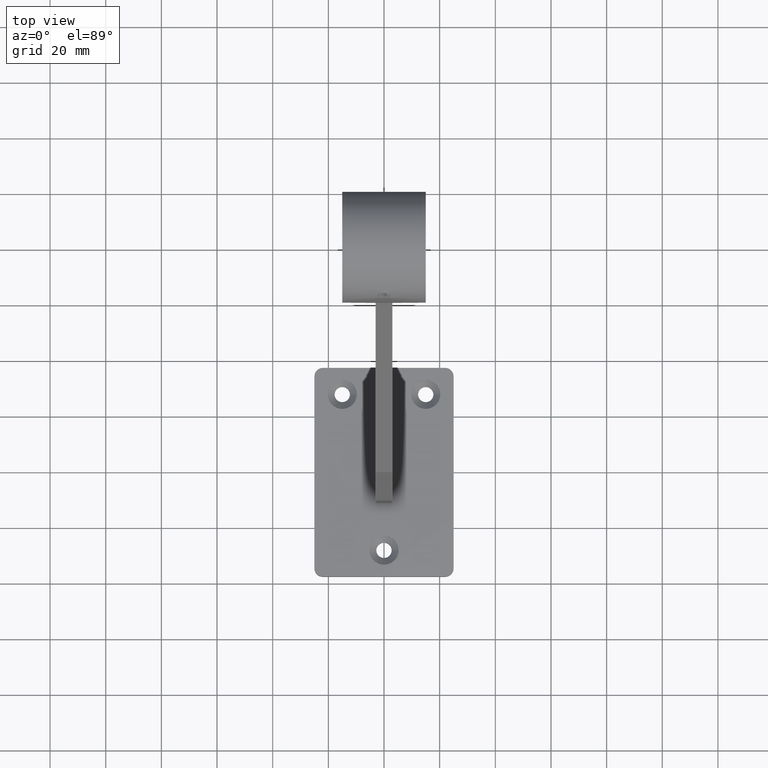
[diagram: clean part render]
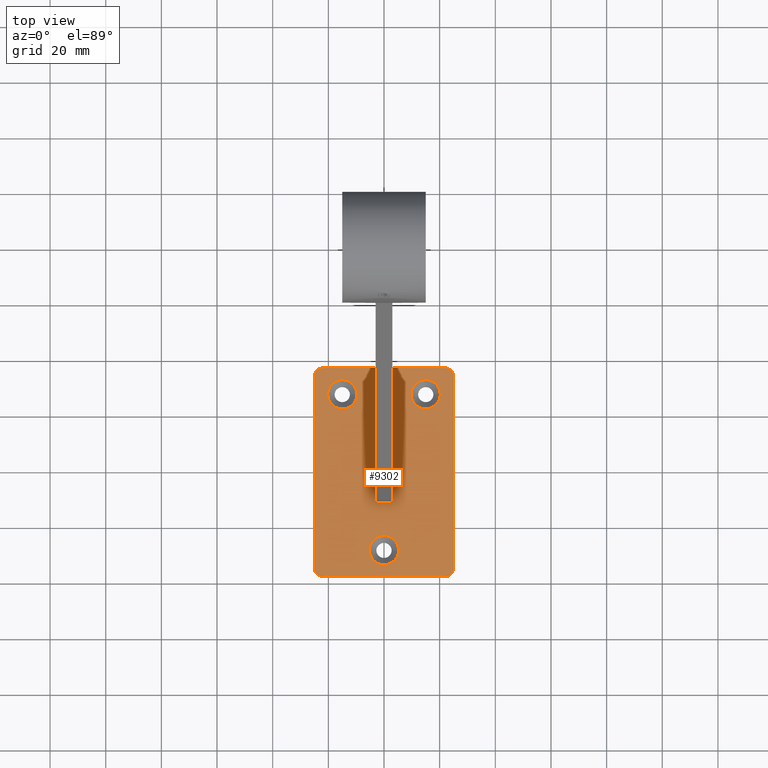
[diagram: same view with one face highlighted and labeled with its STEP entity id]
A machine part, top view. The second image highlights one B-rep face of the part: STEP entity #9302.
In plain terms, the highlighted planar face has unit normal (0, 0, 1).
Its self-contained STEP definition (entity closure, byte-faithful):
#237 = LINE ( 'NONE', #835, #11061 ) ;
#363 = EDGE_CURVE ( 'NONE', #11029, #8313, #6542, .T. ) ;
#413 = VECTOR ( 'NONE', #9717, 1000.000000000000000 ) ;
#473 = DIRECTION ( 'NONE',  ( 1.000000000000000000, 0.000000000000000000, 0.000000000000000000 ) ) ;
#516 = CIRCLE ( 'NONE', #4432, 5.249999999999997335 ) ;
#537 = DIRECTION ( 'NONE',  ( -0.000000000000000000, -0.000000000000000000, 1.000000000000000000 ) ) ;
#546 = VECTOR ( 'NONE', #9906, 1000.000000000000000 ) ;
#708 = CARTESIAN_POINT ( 'NONE',  ( 0.000000000000000000, -27.99999999999999645, 8.000000000000001776 ) ) ;
#804 = VERTEX_POINT ( 'NONE', #11570 ) ;
#825 = CARTESIAN_POINT ( 'NONE',  ( -25.00000000000000355, 37.50000000000000000, 8.000000000000000000 ) ) ;
#835 = CARTESIAN_POINT ( 'NONE',  ( 25.00000000000000000, 37.50000000000000000, 8.000000000000000000 ) ) ;
#1028 = DIRECTION ( 'NONE',  ( -0.000000000000000000, 0.000000000000000000, 1.000000000000000000 ) ) ;
#1068 = LINE ( 'NONE', #825, #5952 ) ;
#1093 = CARTESIAN_POINT ( 'NONE',  ( 22.00000000000000711, -34.49999999999999289, 8.000000000000000000 ) ) ;
#1117 = EDGE_CURVE ( 'NONE', #1280, #5791, #1068, .T. ) ;
#1187 = LINE ( 'NONE', #5854, #413 ) ;
#1280 = VERTEX_POINT ( 'NONE', #8799 ) ;
#1367 = CARTESIAN_POINT ( 'NONE',  ( 22.00000000000000355, 34.49999999999999289, 8.000000000000000000 ) ) ;
#1384 = DIRECTION ( 'NONE',  ( -0.000000000000000000, 0.000000000000000000, 1.000000000000000000 ) ) ;
#1414 = ORIENTED_EDGE ( 'NONE', *, *, #1117, .T. ) ;
#1521 = ORIENTED_EDGE ( 'NONE', *, *, #8321, .T. ) ;
#1580 = CIRCLE ( 'NONE', #2932, 5.249999999999997335 ) ;
#1592 = DIRECTION ( 'NONE',  ( 1.000000000000000000, 0.000000000000000000, 0.000000000000000000 ) ) ;
#1666 = CARTESIAN_POINT ( 'NONE',  ( 0.000000000000000000, 0.000000000000000000, 8.000000000000000000 ) ) ;
#1709 = DIRECTION ( 'NONE',  ( -1.000000000000000000, -0.000000000000000000, -0.000000000000000000 ) ) ;
#2033 = FACE_OUTER_BOUND ( 'NONE', #8465, .T. ) ;
#2245 = CARTESIAN_POINT ( 'NONE',  ( 22.00000000000000355, -37.50000000000000000, 8.000000000000000000 ) ) ;
#2249 = EDGE_CURVE ( 'NONE', #2723, #9585, #6525, .T. ) ;
#2376 = ORIENTED_EDGE ( 'NONE', *, *, #7702, .T. ) ;
#2451 = CARTESIAN_POINT ( 'NONE',  ( 15.00000000000000355, 27.99999999999999645, 8.000000000000001776 ) ) ;
#2639 = CIRCLE ( 'NONE', #8467, 2.999999999999999112 ) ;
#2659 = VERTEX_POINT ( 'NONE', #8069 ) ;
#2662 = CARTESIAN_POINT ( 'NONE',  ( -22.00000000000000711, 37.50000000000000000, 8.000000000000000000 ) ) ;
#2722 = ORIENTED_EDGE ( 'NONE', *, *, #5609, .F. ) ;
#2723 = VERTEX_POINT ( 'NONE', #2662 ) ;
#2932 = AXIS2_PLACEMENT_3D ( 'NONE', #5850, #6711, #5896 ) ;
#2965 = VERTEX_POINT ( 'NONE', #7558 ) ;
#2973 = DIRECTION ( 'NONE',  ( 1.000000000000000000, 0.000000000000000000, 0.000000000000000000 ) ) ;
#3155 = AXIS2_PLACEMENT_3D ( 'NONE', #1367, #7087, #473 ) ;
#3317 = VERTEX_POINT ( 'NONE', #7889 ) ;
#3358 = LINE ( 'NONE', #10769, #546 ) ;
#3383 = ORIENTED_EDGE ( 'NONE', *, *, #3440, .T. ) ;
#3440 = EDGE_CURVE ( 'NONE', #2659, #11029, #3511, .T. ) ;
#3511 = CIRCLE ( 'NONE', #4013, 2.999999999999999112 ) ;
#3534 = EDGE_CURVE ( 'NONE', #2965, #1280, #3798, .T. ) ;
#3550 = DIRECTION ( 'NONE',  ( -0.000000000000000000, 0.000000000000000000, 1.000000000000000000 ) ) ;
#3630 = DIRECTION ( 'NONE',  ( -0.000000000000000000, 0.000000000000000000, 1.000000000000000000 ) ) ;
#3660 = EDGE_CURVE ( 'NONE', #9206, #2723, #3358, .T. ) ;
#3766 = LINE ( 'NONE', #4885, #7769 ) ;
#3798 = CIRCLE ( 'NONE', #3155, 2.999999999999999112 ) ;
#3831 = CARTESIAN_POINT ( 'NONE',  ( -22.00000000000000000, -34.49999999999999289, 8.000000000000000000 ) ) ;
#3973 = DIRECTION ( 'NONE',  ( -1.000000000000000000, -0.000000000000000000, -0.000000000000000000 ) ) ;
#4013 = AXIS2_PLACEMENT_3D ( 'NONE', #3831, #1028, #2973 ) ;
#4432 = AXIS2_PLACEMENT_3D ( 'NONE', #708, #537, #8228 ) ;
#4567 = CARTESIAN_POINT ( 'NONE',  ( 3.000000000000000000, -11.00000000000000355, 8.000000000000000000 ) ) ;
#4591 = DIRECTION ( 'NONE',  ( 1.000000000000000000, 0.000000000000000000, 0.000000000000000000 ) ) ;
#4696 = VERTEX_POINT ( 'NONE', #9996 ) ;
#4885 = CARTESIAN_POINT ( 'NONE',  ( 3.000000000000000000, -11.00000000000000355, 8.000000000000000000 ) ) ;
#4909 = VECTOR ( 'NONE', #4591, 1000.000000000000000 ) ;
#5060 = AXIS2_PLACEMENT_3D ( 'NONE', #1666, #3550, #1592 ) ;
#5116 = FACE_BOUND ( 'NONE', #9396, .T. ) ;
#5154 = EDGE_CURVE ( 'NONE', #4696, #2965, #237, .T. ) ;
#5609 = EDGE_CURVE ( 'NONE', #9206, #11802, #1187, .T. ) ;
#5729 = EDGE_CURVE ( 'NONE', #9585, #2659, #11366, .T. ) ;
#5791 = VERTEX_POINT ( 'NONE', #6185 ) ;
#5850 = CARTESIAN_POINT ( 'NONE',  ( -15.00000000000000533, 27.99999999999999645, 8.000000000000001776 ) ) ;
#5854 = CARTESIAN_POINT ( 'NONE',  ( -3.000000000000000000, 0.000000000000000000, 8.000000000000000000 ) ) ;
#5896 = DIRECTION ( 'NONE',  ( 1.000000000000000000, 0.000000000000000000, 0.000000000000000000 ) ) ;
#5952 = VECTOR ( 'NONE', #1709, 1000.000000000000000 ) ;
#5981 = ORIENTED_EDGE ( 'NONE', *, *, #363, .T. ) ;
#6066 = DIRECTION ( 'NONE',  ( 9.251858538542971581E-17, -1.000000000000000000, 0.000000000000000000 ) ) ;
#6185 = CARTESIAN_POINT ( 'NONE',  ( 3.000000000000000000, 37.50000000000000000, 7.999999999999998224 ) ) ;
#6525 = CIRCLE ( 'NONE', #7994, 2.999999999999999112 ) ;
#6538 = ORIENTED_EDGE ( 'NONE', *, *, #10664, .F. ) ;
#6542 = LINE ( 'NONE', #10126, #4909 ) ;
#6603 = EDGE_CURVE ( 'NONE', #3317, #3317, #9770, .T. ) ;
#6711 = DIRECTION ( 'NONE',  ( -0.000000000000000000, -0.000000000000000000, 1.000000000000000000 ) ) ;
#6716 = VERTEX_POINT ( 'NONE', #11529 ) ;
#6772 = ORIENTED_EDGE ( 'NONE', *, *, #5154, .T. ) ;
#7019 = DIRECTION ( 'NONE',  ( 1.000000000000000000, 0.000000000000000000, 0.000000000000000000 ) ) ;
#7056 = CARTESIAN_POINT ( 'NONE',  ( -22.00000000000000000, -37.50000000000000000, 8.000000000000000000 ) ) ;
#7087 = DIRECTION ( 'NONE',  ( -0.000000000000000000, 0.000000000000000000, 1.000000000000000000 ) ) ;
#7392 = DIRECTION ( 'NONE',  ( -4.625929269271485791E-17, 1.000000000000000000, -0.000000000000000000 ) ) ;
#7393 = ORIENTED_EDGE ( 'NONE', *, *, #6603, .F. ) ;
#7441 = ORIENTED_EDGE ( 'NONE', *, *, #11964, .T. ) ;
#7558 = CARTESIAN_POINT ( 'NONE',  ( 25.00000000000000000, 34.49999999999999289, 8.000000000000000000 ) ) ;
#7702 = EDGE_CURVE ( 'NONE', #8313, #4696, #2639, .T. ) ;
#7769 = VECTOR ( 'NONE', #3973, 1000.000000000000000 ) ;
#7779 = FACE_BOUND ( 'NONE', #9373, .T. ) ;
#7889 = CARTESIAN_POINT ( 'NONE',  ( 20.25000000000000000, 27.99999999999999645, 8.000000000000001776 ) ) ;
#7994 = AXIS2_PLACEMENT_3D ( 'NONE', #9341, #3630, #11236 ) ;
#8067 = ORIENTED_EDGE ( 'NONE', *, *, #2249, .T. ) ;
#8069 = CARTESIAN_POINT ( 'NONE',  ( -24.99999999999999645, -34.49999999999999289, 8.000000000000000000 ) ) ;
#8228 = DIRECTION ( 'NONE',  ( 1.000000000000000000, 0.000000000000000000, 0.000000000000000000 ) ) ;
#8253 = EDGE_LOOP ( 'NONE', ( #6538 ) ) ;
#8313 = VERTEX_POINT ( 'NONE', #2245 ) ;
#8321 = EDGE_CURVE ( 'NONE', #5791, #9476, #11489, .T. ) ;
#8465 = EDGE_LOOP ( 'NONE', ( #8808, #8067, #9868, #3383, #5981, #2376, #6772, #10977, #1414, #1521, #7441, #2722 ) ) ;
#8467 = AXIS2_PLACEMENT_3D ( 'NONE', #1093, #1384, #7019 ) ;
#8674 = FACE_BOUND ( 'NONE', #8253, .T. ) ;
#8799 = CARTESIAN_POINT ( 'NONE',  ( 22.00000000000000355, 37.50000000000000000, 8.000000000000000000 ) ) ;
#8808 = ORIENTED_EDGE ( 'NONE', *, *, #3660, .T. ) ;
#8835 = CARTESIAN_POINT ( 'NONE',  ( -25.00000000000000355, 37.50000000000000000, 8.000000000000000000 ) ) ;
#8837 = DIRECTION ( 'NONE',  ( 0.000000000000000000, -1.000000000000000000, 0.000000000000000000 ) ) ;
#9206 = VERTEX_POINT ( 'NONE', #11695 ) ;
#9221 = PLANE ( 'NONE',  #5060 ) ;
#9280 = VECTOR ( 'NONE', #8837, 1000.000000000000000 ) ;
#9302 = ADVANCED_FACE ( 'NONE', ( #5116, #7779, #8674, #2033 ), #9221, .T. ) ;
#9341 = CARTESIAN_POINT ( 'NONE',  ( -22.00000000000000711, 34.49999999999999289, 8.000000000000000000 ) ) ;
#9373 = EDGE_LOOP ( 'NONE', ( #7393 ) ) ;
#9396 = EDGE_LOOP ( 'NONE', ( #12258 ) ) ;
#9476 = VERTEX_POINT ( 'NONE', #4567 ) ;
#9553 = CARTESIAN_POINT ( 'NONE',  ( -25.00000000000000355, 34.49999999999999289, 8.000000000000000000 ) ) ;
#9585 = VERTEX_POINT ( 'NONE', #9553 ) ;
#9717 = DIRECTION ( 'NONE',  ( 0.000000000000000000, -1.000000000000000000, 0.000000000000000000 ) ) ;
#9770 = CIRCLE ( 'NONE', #11140, 5.249999999999997335 ) ;
#9844 = CARTESIAN_POINT ( 'NONE',  ( 3.000000000000000000, 0.000000000000000000, 8.000000000000000000 ) ) ;
#9868 = ORIENTED_EDGE ( 'NONE', *, *, #5729, .T. ) ;
#9906 = DIRECTION ( 'NONE',  ( -1.000000000000000000, -0.000000000000000000, -0.000000000000000000 ) ) ;
#9918 = EDGE_CURVE ( 'NONE', #6716, #6716, #1580, .T. ) ;
#9996 = CARTESIAN_POINT ( 'NONE',  ( 25.00000000000000355, -34.49999999999999289, 8.000000000000000000 ) ) ;
#10126 = CARTESIAN_POINT ( 'NONE',  ( -24.99999999999999645, -37.50000000000000000, 8.000000000000000000 ) ) ;
#10516 = CARTESIAN_POINT ( 'NONE',  ( -3.000000000000000000, -11.00000000000000355, 8.000000000000000000 ) ) ;
#10664 = EDGE_CURVE ( 'NONE', #804, #804, #516, .T. ) ;
#10769 = CARTESIAN_POINT ( 'NONE',  ( -25.00000000000000355, 37.50000000000000000, 8.000000000000000000 ) ) ;
#10948 = DIRECTION ( 'NONE',  ( -0.000000000000000000, -0.000000000000000000, 1.000000000000000000 ) ) ;
#10977 = ORIENTED_EDGE ( 'NONE', *, *, #3534, .T. ) ;
#11029 = VERTEX_POINT ( 'NONE', #7056 ) ;
#11061 = VECTOR ( 'NONE', #7392, 1000.000000000000000 ) ;
#11140 = AXIS2_PLACEMENT_3D ( 'NONE', #2451, #10948, #11896 ) ;
#11236 = DIRECTION ( 'NONE',  ( 1.000000000000000000, 0.000000000000000000, 0.000000000000000000 ) ) ;
#11353 = VECTOR ( 'NONE', #6066, 1000.000000000000000 ) ;
#11366 = LINE ( 'NONE', #8835, #11353 ) ;
#11489 = LINE ( 'NONE', #9844, #9280 ) ;
#11529 = CARTESIAN_POINT ( 'NONE',  ( -9.750000000000007105, 27.99999999999999645, 8.000000000000001776 ) ) ;
#11570 = CARTESIAN_POINT ( 'NONE',  ( 5.249999999999997335, -27.99999999999999645, 8.000000000000001776 ) ) ;
#11695 = CARTESIAN_POINT ( 'NONE',  ( -3.000000000000000000, 37.50000000000000000, 7.999999999999998224 ) ) ;
#11802 = VERTEX_POINT ( 'NONE', #10516 ) ;
#11896 = DIRECTION ( 'NONE',  ( 1.000000000000000000, 0.000000000000000000, 0.000000000000000000 ) ) ;
#11964 = EDGE_CURVE ( 'NONE', #9476, #11802, #3766, .T. ) ;
#12258 = ORIENTED_EDGE ( 'NONE', *, *, #9918, .F. ) ;